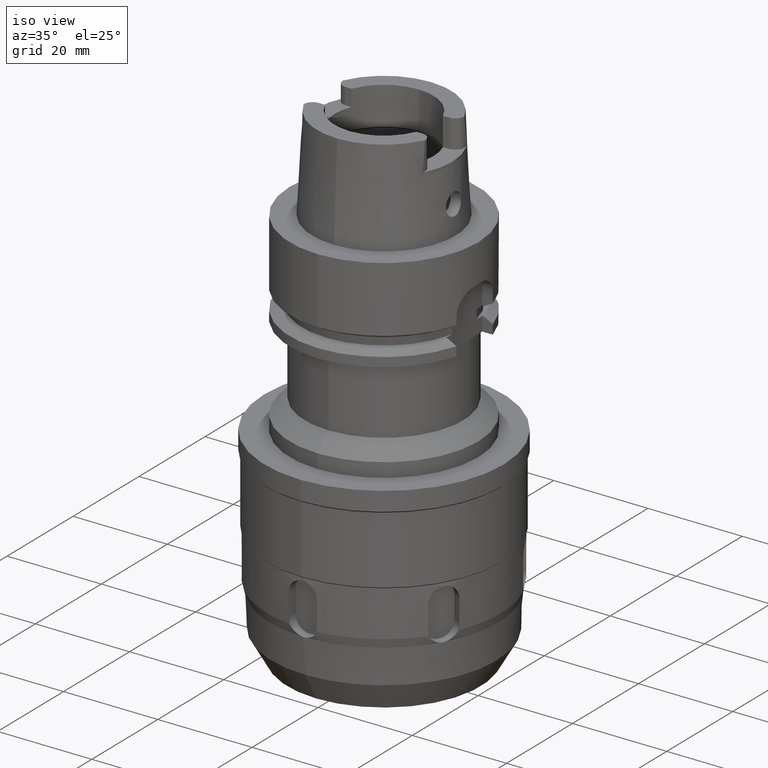
[diagram: clean part render]
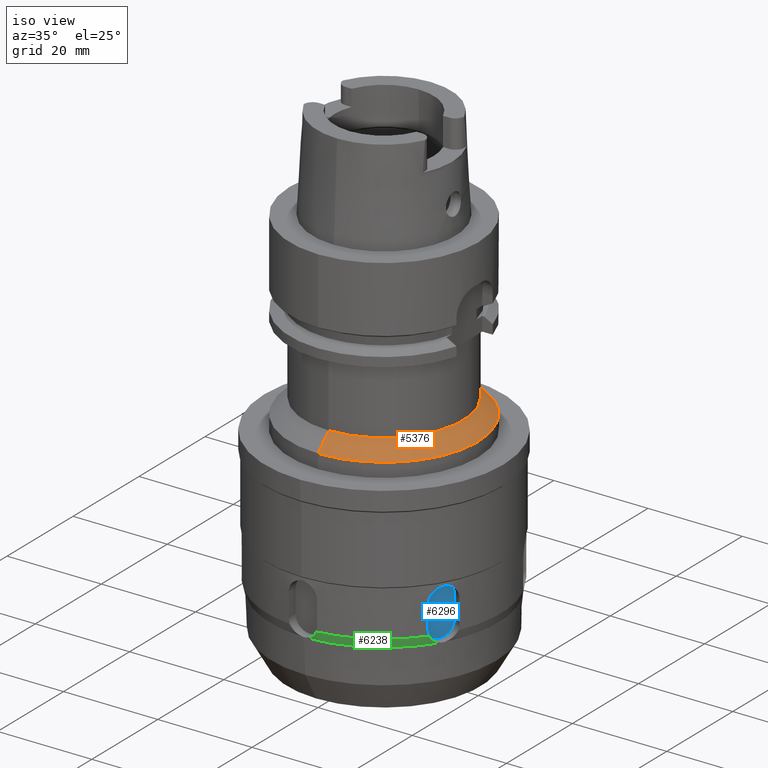
[diagram: same view with three faces highlighted in distinct colors, each labeled with its STEP entity id]
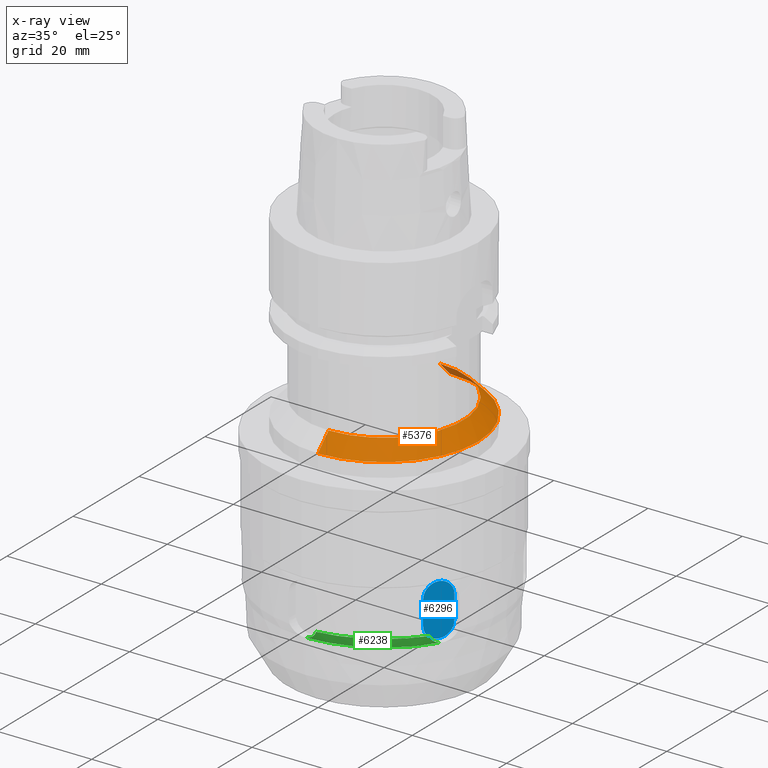
[diagram: x-ray of the same camera — body ghosted, the three highlighted faces saturated]
A machine part, iso view with three faces highlighted in distinct colors.
The next image is the same camera in x-ray (body ghosted, the three faces saturated) — at least one of them is partly hidden behind the body in this view.
Their STEP definitions:

[orange] entity #5376 — the highlighted conical surface has half-angle 45 deg.
#2043=DIRECTION('',(0.E0,-7.071067811865E-1,-7.071067811865E-1));
#2044=VECTOR('',#2043,4.525483399594E0);
#2045=CARTESIAN_POINT('',(0.E0,-1.68E1,-3.5E1));
#2046=LINE('',#2045,#2044);
#2058=DIRECTION('',(0.E0,7.071067811865E-1,-7.071067811865E-1));
#2059=VECTOR('',#2058,4.525483399594E0);
#2060=CARTESIAN_POINT('',(0.E0,1.68E1,-3.5E1));
#2061=LINE('',#2060,#2059);
#2065=CARTESIAN_POINT('',(0.E0,0.E0,-3.82E1));
#2066=DIRECTION('',(0.E0,0.E0,-1.E0));
#2067=DIRECTION('',(0.E0,1.E0,0.E0));
#2068=AXIS2_PLACEMENT_3D('',#2065,#2066,#2067);
#2073=CARTESIAN_POINT('',(0.E0,0.E0,-3.5E1));
#2074=DIRECTION('',(0.E0,0.E0,1.E0));
#2075=DIRECTION('',(0.E0,-1.E0,0.E0));
#2076=AXIS2_PLACEMENT_3D('',#2073,#2074,#2075);
#3795=CARTESIAN_POINT('',(0.E0,2.E1,-3.82E1));
#3796=VERTEX_POINT('',#3795);
#3797=CARTESIAN_POINT('',(0.E0,-2.E1,-3.82E1));
#3798=VERTEX_POINT('',#3797);
#3799=CARTESIAN_POINT('',(0.E0,1.68E1,-3.5E1));
#3800=VERTEX_POINT('',#3799);
#3801=CARTESIAN_POINT('',(0.E0,-1.68E1,-3.5E1));
#3802=VERTEX_POINT('',#3801);
#5364=CARTESIAN_POINT('',(0.E0,0.E0,-3.66E1));
#5365=DIRECTION('',(0.E0,0.E0,-1.E0));
#5366=DIRECTION('',(0.E0,-1.E0,0.E0));
#5367=AXIS2_PLACEMENT_3D('',#5364,#5365,#5366);
#5368=CONICAL_SURFACE('',#5367,1.84E1,4.5E1);
#5369=ORIENTED_EDGE('',*,*,#5354,.T.);
#5370=ORIENTED_EDGE('',*,*,#5331,.T.);
#5371=ORIENTED_EDGE('',*,*,#5358,.F.);
#5373=ORIENTED_EDGE('',*,*,#5372,.T.);
#5374=EDGE_LOOP('',(#5369,#5370,#5371,#5373));
#5375=FACE_OUTER_BOUND('',#5374,.F.);
#2069=CIRCLE('',#2068,2.E1);
#2077=CIRCLE('',#2076,1.68E1);
#5331=EDGE_CURVE('',#3796,#3798,#2069,.T.);
#5354=EDGE_CURVE('',#3800,#3796,#2061,.T.);
#5358=EDGE_CURVE('',#3802,#3798,#2046,.T.);
#5372=EDGE_CURVE('',#3802,#3800,#2077,.T.);
#5376=ADVANCED_FACE('',(#5375),#5368,.T.);

[blue] entity #6296 — the highlighted planar face has unit normal (0.866, -0.5, 0).
#3312=DIRECTION('',(0.E0,0.E0,-1.E0));
#3313=VECTOR('',#3312,5.000000000001E0);
#3314=CARTESIAN_POINT('',(2.098557158515E1,-8.651923788647E0,-6.38E1));
#3315=LINE('',#3314,#3313);
#3319=CARTESIAN_POINT('',(1.948557158515E1,-1.125E1,-6.88E1));
#3320=DIRECTION('',(-8.660254037844E-1,5.E-1,0.E0));
#3321=DIRECTION('',(5.E-1,8.660254037844E-1,-6.915949294732E-13));
#3322=AXIS2_PLACEMENT_3D('',#3319,#3320,#3321);
#3327=CARTESIAN_POINT('',(1.948557158515E1,-1.125E1,-6.88E1));
#3328=DIRECTION('',(-8.660254037844E-1,5.E-1,0.E0));
#3329=DIRECTION('',(0.E0,0.E0,-1.E0));
#3330=AXIS2_PLACEMENT_3D('',#3327,#3328,#3329);
#3335=DIRECTION('',(0.E0,0.E0,1.E0));
#3336=VECTOR('',#3335,5.000000000015E0);
#3337=CARTESIAN_POINT('',(1.798557158515E1,-1.384807621135E1,
-6.880000000001E1));
#3338=LINE('',#3337,#3336);
#3342=CARTESIAN_POINT('',(1.948557158515E1,-1.125E1,-6.38E1));
#3343=DIRECTION('',(-8.660254037844E-1,5.E-1,0.E0));
#3344=DIRECTION('',(-5.E-1,-8.660254037844E-1,7.252272856325E-12));
#3345=AXIS2_PLACEMENT_3D('',#3342,#3343,#3344);
#3350=CARTESIAN_POINT('',(1.948557158515E1,-1.125E1,-6.38E1));
#3351=DIRECTION('',(-8.660254037844E-1,5.E-1,0.E0));
#3352=DIRECTION('',(0.E0,0.E0,1.E0));
#3353=AXIS2_PLACEMENT_3D('',#3350,#3351,#3352);
#3982=CARTESIAN_POINT('',(1.798557158515E1,-1.384807621135E1,
-6.880000000001E1));
#3983=VERTEX_POINT('',#3982);
#3984=CARTESIAN_POINT('',(1.948557158515E1,-1.125E1,-7.18E1));
#3985=VERTEX_POINT('',#3984);
#3986=CARTESIAN_POINT('',(2.098557158515E1,-8.651923788647E0,-6.88E1));
#3987=VERTEX_POINT('',#3986);
#3988=CARTESIAN_POINT('',(1.798557158515E1,-1.384807621135E1,
-6.379999999999E1));
#3989=VERTEX_POINT('',#3988);
#3990=CARTESIAN_POINT('',(2.098557158515E1,-8.651923788647E0,-6.38E1));
#3991=VERTEX_POINT('',#3990);
#3992=CARTESIAN_POINT('',(1.948557158515E1,-1.125E1,-6.08E1));
#3993=VERTEX_POINT('',#3992);
#6283=CARTESIAN_POINT('',(1.948557158515E1,-1.125E1,0.E0));
#6284=DIRECTION('',(8.660254037844E-1,-5.E-1,0.E0));
#6285=DIRECTION('',(0.E0,0.E0,-1.E0));
#6286=AXIS2_PLACEMENT_3D('',#6283,#6284,#6285);
#6287=PLANE('',#6286);
#6288=ORIENTED_EDGE('',*,*,#6277,.T.);
#6289=ORIENTED_EDGE('',*,*,#6218,.T.);
#6290=ORIENTED_EDGE('',*,*,#6216,.T.);
#6291=ORIENTED_EDGE('',*,*,#6247,.T.);
#6292=ORIENTED_EDGE('',*,*,#6264,.T.);
#6293=ORIENTED_EDGE('',*,*,#6262,.T.);
#6294=EDGE_LOOP('',(#6288,#6289,#6290,#6291,#6292,#6293));
#6295=FACE_OUTER_BOUND('',#6294,.F.);
#3323=CIRCLE('',#3322,3.E0);
#3331=CIRCLE('',#3330,3.E0);
#3346=CIRCLE('',#3345,3.E0);
#3354=CIRCLE('',#3353,3.E0);
#6216=EDGE_CURVE('',#3985,#3983,#3331,.T.);
#6218=EDGE_CURVE('',#3987,#3985,#3323,.T.);
#6247=EDGE_CURVE('',#3983,#3989,#3338,.T.);
#6262=EDGE_CURVE('',#3993,#3991,#3354,.T.);
#6264=EDGE_CURVE('',#3989,#3993,#3346,.T.);
#6277=EDGE_CURVE('',#3991,#3987,#3315,.T.);
#6296=ADVANCED_FACE('',(#6295),#6287,.T.);

[green] entity #6238 — the highlighted conical surface has half-angle 15 deg.
#1413=CARTESIAN_POINT('',(0.E0,0.E0,-7.177192445144E1));
#1414=DIRECTION('',(0.E0,0.E0,1.E0));
#1415=DIRECTION('',(1.688639220505E-2,-9.998574147139E-1,0.E0));
#1416=AXIS2_PLACEMENT_3D('',#1413,#1414,#1415);
#3266=CARTESIAN_POINT('',(4.094688751619E-1,-2.424496187482E1,
-7.177192445903E1));
#3267=CARTESIAN_POINT('',(6.212271786514E-1,-2.424920428819E1,
-7.174274859121E1));
#3268=CARTESIAN_POINT('',(1.037223513764E0,-2.426435539751E1,
-7.163894974504E1));
#3269=CARTESIAN_POINT('',(1.608993420295E0,-2.430792371016E1,
-7.135864290745E1));
#3270=CARTESIAN_POINT('',(2.110688806852E0,-2.437532631081E1,
-7.096291945315E1));
#3271=CARTESIAN_POINT('',(2.513065032256E0,-2.446699478165E1,
-7.047864577024E1));
#3272=CARTESIAN_POINT('',(2.712542087340E0,-2.454728795693E1,
-7.009929136475E1));
#3273=CARTESIAN_POINT('',(2.791105496911E0,-2.459215018742E1,
-6.989986678803E1));
#3278=CARTESIAN_POINT('',(0.E0,0.E0,-6.99E1));
#3279=DIRECTION('',(0.E0,0.E0,1.E0));
#3280=DIRECTION('',(1.127694838842E-1,-9.936211770612E-1,0.E0));
#3281=AXIS2_PLACEMENT_3D('',#3278,#3279,#3280);
#3286=CARTESIAN_POINT('',(1.990187688100E1,-1.471318517007E1,
-6.989999825432E1));
#3287=CARTESIAN_POINT('',(1.990232629590E1,-1.462267685360E1,
-7.009945136219E1));
#3288=CARTESIAN_POINT('',(1.993253065581E1,-1.440934937122E1,
-7.047974852590E1));
#3289=CARTESIAN_POINT('',(2.005542429769E1,-1.401230217715E1,
-7.096657042401E1));
#3290=CARTESIAN_POINT('',(2.024935164198E1,-1.354162523987E1,
-7.136270504379E1));
#3291=CARTESIAN_POINT('',(2.049804194929E1,-1.302440129949E1,
-7.164118762224E1));
#3292=CARTESIAN_POINT('',(2.069120125949E1,-1.266008149057E1,
-7.174314480967E1));
#3293=CARTESIAN_POINT('',(2.079201853462E1,-1.247709124934E1,
-7.177192447428E1));
#3689=VERTEX_POINT('',#3266);
#3690=VERTEX_POINT('',#3273);
#3691=CARTESIAN_POINT('',(1.990188188215E1,-1.471317768359E1,-6.99E1));
#3692=VERTEX_POINT('',#3691);
#3693=VERTEX_POINT('',#3293);
#6227=CARTESIAN_POINT('',(0.E0,0.E0,-7.083596222572E1));
#6228=DIRECTION('',(0.E0,0.E0,1.E0));
#6229=DIRECTION('',(0.E0,1.E0,0.E0));
#6230=AXIS2_PLACEMENT_3D('',#6227,#6228,#6229);
#6231=CONICAL_SURFACE('',#6230,2.449920967747E1,1.5E1);
#6232=ORIENTED_EDGE('',*,*,#4985,.T.);
#6233=ORIENTED_EDGE('',*,*,#5160,.T.);
#6234=ORIENTED_EDGE('',*,*,#6211,.T.);
#6235=ORIENTED_EDGE('',*,*,#4944,.F.);
#6236=EDGE_LOOP('',(#6232,#6233,#6234,#6235));
#6237=FACE_OUTER_BOUND('',#6236,.F.);
#1417=CIRCLE('',#1416,2.424841935494E1);
#3274=B_SPLINE_CURVE_WITH_KNOTS('',3,(#3266,#3267,#3268,#3269,#3270,#3271,#3272,
#3273),.UNSPECIFIED.,.F.,.F.,(4,1,1,1,1,4),(0.E0,2.E-1,4.E-1,6.E-1,8.E-1,1.E0),
.UNSPECIFIED.);
#3282=CIRCLE('',#3281,2.475E1);
#3294=B_SPLINE_CURVE_WITH_KNOTS('',3,(#3286,#3287,#3288,#3289,#3290,#3291,#3292,
#3293),.UNSPECIFIED.,.F.,.F.,(4,1,1,1,1,4),(0.E0,2.E-1,4.E-1,6.E-1,8.E-1,1.E0),
.UNSPECIFIED.);
#4944=EDGE_CURVE('',#3689,#3693,#1417,.T.);
#4985=EDGE_CURVE('',#3689,#3690,#3274,.T.);
#5160=EDGE_CURVE('',#3690,#3692,#3282,.T.);
#6211=EDGE_CURVE('',#3692,#3693,#3294,.T.);
#6238=ADVANCED_FACE('',(#6237),#6231,.T.);